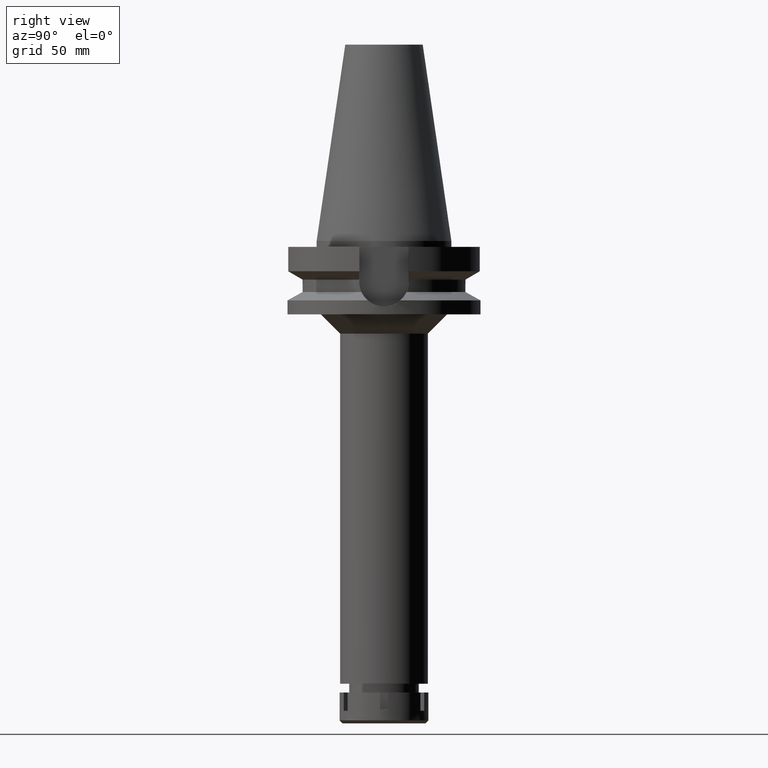
[diagram: clean part render]
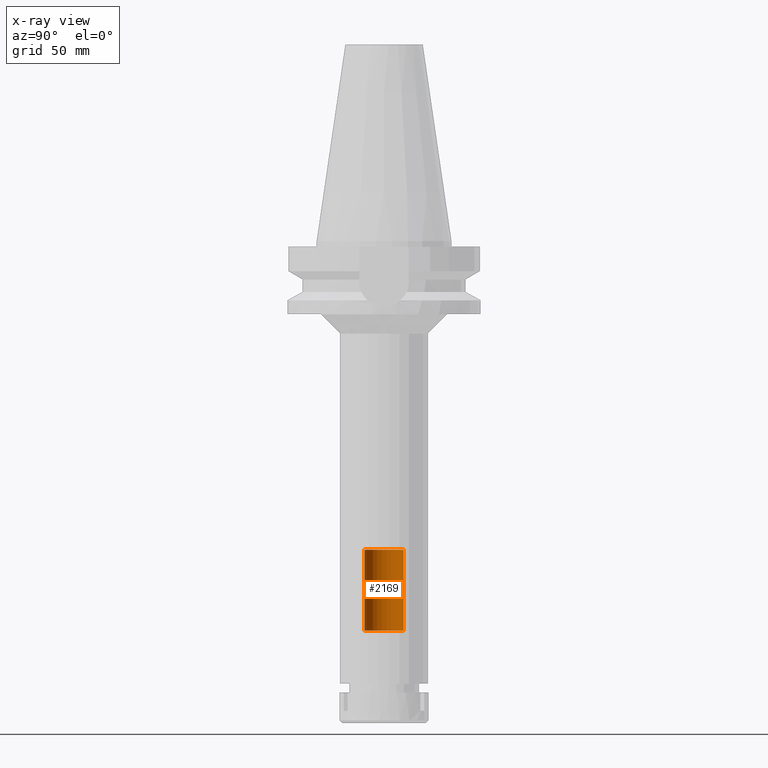
[diagram: x-ray — body ghosted, one internal face saturated and labeled with its STEP entity id]
A machine part, right view, then the same camera in x-ray: the body is ghosted and one INTERNAL B-rep face — a face not visible from any outside direction — is saturated and labeled: STEP entity #2169.
In plain terms, the highlighted cylindrical surface (edge-blend (fillet) strip) has radius 10.15 mm, axis along (0, 0, -1).
Its self-contained STEP definition (entity closure, byte-faithful):
#11 = EDGE_CURVE ( 'NONE', #150, #3042, #665, .T. ) ;
#118 = EDGE_LOOP ( 'NONE', ( #2300, #1645, #2112, #1913 ) ) ;
#120 = EDGE_CURVE ( 'NONE', #150, #2271, #1445, .T. ) ;
#150 = VERTEX_POINT ( 'NONE', #3093 ) ;
#379 = DIRECTION ( 'NONE',  ( 0.0000000000000000000, 0.0000000000000000000, 1.000000000000000000 ) ) ;
#464 = DIRECTION ( 'NONE',  ( 0.0000000000000000000, 0.0000000000000000000, -1.000000000000000000 ) ) ;
#502 = VECTOR ( 'NONE', #2009, 1000.000000000000000 ) ;
#665 = CIRCLE ( 'NONE', #850, 10.14999999999999858 ) ;
#680 = DIRECTION ( 'NONE',  ( 0.0000000000000000000, 1.000000000000000000, 0.0000000000000000000 ) ) ;
#720 = AXIS2_PLACEMENT_3D ( 'NONE', #2987, #2727, #1581 ) ;
#757 = EDGE_CURVE ( 'NONE', #1625, #2271, #772, .T. ) ;
#772 = CIRCLE ( 'NONE', #1648, 10.14999999999999858 ) ;
#827 = CYLINDRICAL_SURFACE ( 'NONE', #720, 10.14999999999999858 ) ;
#834 = CARTESIAN_POINT ( 'NONE',  ( 0.0000000000000000000, 10.14999999999999858, -202.0000000000000000 ) ) ;
#850 = AXIS2_PLACEMENT_3D ( 'NONE', #3534, #464, #1577 ) ;
#947 = CARTESIAN_POINT ( 'NONE',  ( 0.0000000000000000000, 10.14999999999999858, -202.0000000000000000 ) ) ;
#1092 = CARTESIAN_POINT ( 'NONE',  ( 0.0000000000000000000, -10.14999999999999858, -160.0000000000000000 ) ) ;
#1257 = LINE ( 'NONE', #947, #3282 ) ;
#1316 = CARTESIAN_POINT ( 'NONE',  ( 0.0000000000000000000, 10.14999999999999858, -160.0000000000000000 ) ) ;
#1445 = LINE ( 'NONE', #2855, #502 ) ;
#1577 = DIRECTION ( 'NONE',  ( 0.0000000000000000000, -1.000000000000000000, 0.0000000000000000000 ) ) ;
#1581 = DIRECTION ( 'NONE',  ( 0.0000000000000000000, -1.000000000000000000, 0.0000000000000000000 ) ) ;
#1625 = VERTEX_POINT ( 'NONE', #1316 ) ;
#1645 = ORIENTED_EDGE ( 'NONE', *, *, #120, .F. ) ;
#1648 = AXIS2_PLACEMENT_3D ( 'NONE', #1775, #1810, #680 ) ;
#1775 = CARTESIAN_POINT ( 'NONE',  ( 0.0000000000000000000, 2.681854025452999794E-14, -160.0000000000000000 ) ) ;
#1810 = DIRECTION ( 'NONE',  ( 0.0000000000000000000, 0.0000000000000000000, 1.000000000000000000 ) ) ;
#1913 = ORIENTED_EDGE ( 'NONE', *, *, #2367, .T. ) ;
#2009 = DIRECTION ( 'NONE',  ( 0.0000000000000000000, 0.0000000000000000000, 1.000000000000000000 ) ) ;
#2112 = ORIENTED_EDGE ( 'NONE', *, *, #11, .T. ) ;
#2169 = ADVANCED_FACE ( 'NONE', ( #2966 ), #827, .F. ) ;
#2271 = VERTEX_POINT ( 'NONE', #1092 ) ;
#2300 = ORIENTED_EDGE ( 'NONE', *, *, #757, .T. ) ;
#2367 = EDGE_CURVE ( 'NONE', #3042, #1625, #1257, .T. ) ;
#2727 = DIRECTION ( 'NONE',  ( 0.0000000000000000000, 0.0000000000000000000, -1.000000000000000000 ) ) ;
#2855 = CARTESIAN_POINT ( 'NONE',  ( 0.0000000000000000000, -10.14999999999999858, -202.0000000000000000 ) ) ;
#2966 = FACE_OUTER_BOUND ( 'NONE', #118, .T. ) ;
#2987 = CARTESIAN_POINT ( 'NONE',  ( 0.0000000000000000000, 2.681854025452999794E-14, 118.9899999999999949 ) ) ;
#3042 = VERTEX_POINT ( 'NONE', #834 ) ;
#3093 = CARTESIAN_POINT ( 'NONE',  ( 0.0000000000000000000, -10.14999999999999858, -202.0000000000000000 ) ) ;
#3282 = VECTOR ( 'NONE', #379, 1000.000000000000000 ) ;
#3534 = CARTESIAN_POINT ( 'NONE',  ( 0.0000000000000000000, 2.681854025452999794E-14, -202.0000000000000000 ) ) ;